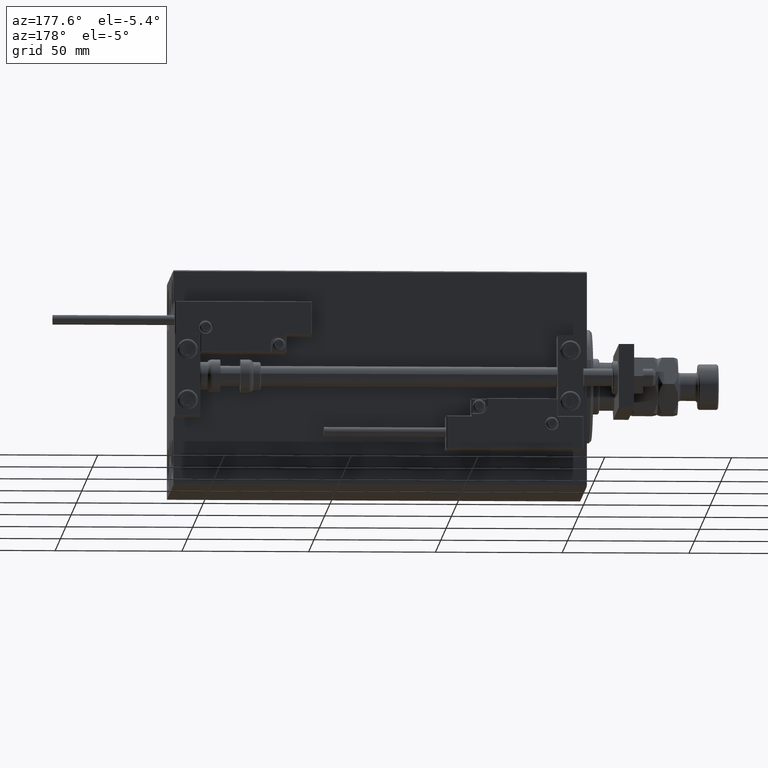
[diagram: clean part render]
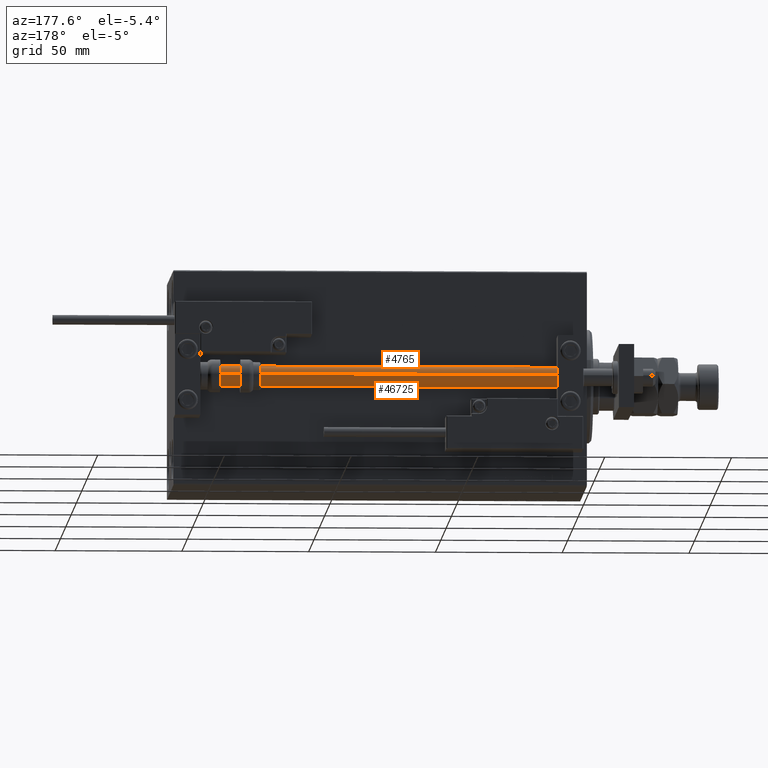
[diagram: same view with one multi-face feature highlighted, each face labeled with its STEP entity id]
A machine part, auxiliary view. The highlighted faces form ONE feature: a constant-radius fillet chain: 2 tangent blend faces with common blend radius 4 mm. The faces share edges in the B-rep.
Their STEP definitions:
[1] entity #46725 (Cylinder):
#442 = CIRCLE ( 'NONE', #32156, 4.000000000000000000 ) ;
#768 = CYLINDRICAL_SURFACE ( 'NONE', #41903, 4.000000000000000000 ) ;
#1303 = CARTESIAN_POINT ( 'NONE',  ( 0.000000000000000000, 0.000000000000000000, 163.0000000000000000 ) ) ;
#2083 = CARTESIAN_POINT ( 'NONE',  ( 4.000000000000000000, 4.898587196589412829E-16, 163.0000000000000000 ) ) ;
#4780 = VERTEX_POINT ( 'NONE', #24670 ) ;
#4895 = ORIENTED_EDGE ( 'NONE', *, *, #31875, .F. ) ;
#9328 = DIRECTION ( 'NONE',  ( -0.000000000000000000, -0.000000000000000000, -1.000000000000000000 ) ) ;
#10497 = CARTESIAN_POINT ( 'NONE',  ( 4.000000000000000000, 4.898587196589412829E-16, 163.0000000000000000 ) ) ;
#10746 = LINE ( 'NONE', #10497, #43607 ) ;
#10883 = CARTESIAN_POINT ( 'NONE',  ( 0.000000000000000000, 0.000000000000000000, 163.0000000000000000 ) ) ;
#12787 = DIRECTION ( 'NONE',  ( -0.000000000000000000, -0.000000000000000000, -1.000000000000000000 ) ) ;
#14852 = CARTESIAN_POINT ( 'NONE',  ( 4.000000000000000000, 4.898587196589412829E-16, 2.000000000000029310 ) ) ;
#17227 = FACE_OUTER_BOUND ( 'NONE', #26815, .T. ) ;
#18848 = DIRECTION ( 'NONE',  ( -0.000000000000000000, -0.000000000000000000, -1.000000000000000000 ) ) ;
#18976 = DIRECTION ( 'NONE',  ( 0.000000000000000000, 0.000000000000000000, 1.000000000000000000 ) ) ;
#21367 = LINE ( 'NONE', #29200, #28504 ) ;
#22553 = ORIENTED_EDGE ( 'NONE', *, *, #51360, .F. ) ;
#23692 = EDGE_CURVE ( 'NONE', #4780, #37095, #21367, .T. ) ;
#24670 = CARTESIAN_POINT ( 'NONE',  ( -4.000000000000000000, 0.000000000000000000, 163.0000000000000000 ) ) ;
#25251 = EDGE_CURVE ( 'NONE', #37095, #29797, #31082, .T. ) ;
#26815 = EDGE_LOOP ( 'NONE', ( #22553, #4895, #34334, #43322 ) ) ;
#28504 = VECTOR ( 'NONE', #9328, 1000.000000000000000 ) ;
#29200 = CARTESIAN_POINT ( 'NONE',  ( -4.000000000000000000, 0.000000000000000000, 163.0000000000000000 ) ) ;
#29797 = VERTEX_POINT ( 'NONE', #14852 ) ;
#31082 = CIRCLE ( 'NONE', #45281, 4.000000000000000000 ) ;
#31875 = EDGE_CURVE ( 'NONE', #4780, #36348, #442, .T. ) ;
#32156 = AXIS2_PLACEMENT_3D ( 'NONE', #10883, #18976, #34957 ) ;
#34334 = ORIENTED_EDGE ( 'NONE', *, *, #23692, .T. ) ;
#34957 = DIRECTION ( 'NONE',  ( 1.000000000000000000, 0.000000000000000000, 0.000000000000000000 ) ) ;
#35281 = CARTESIAN_POINT ( 'NONE',  ( 0.000000000000000000, 0.000000000000000000, 2.000000000000029310 ) ) ;
#35838 = CARTESIAN_POINT ( 'NONE',  ( -4.000000000000000000, 0.000000000000000000, 2.000000000000029310 ) ) ;
#36348 = VERTEX_POINT ( 'NONE', #2083 ) ;
#37095 = VERTEX_POINT ( 'NONE', #35838 ) ;
#41903 = AXIS2_PLACEMENT_3D ( 'NONE', #1303, #12787, #49158 ) ;
#43322 = ORIENTED_EDGE ( 'NONE', *, *, #25251, .T. ) ;
#43607 = VECTOR ( 'NONE', #18848, 1000.000000000000000 ) ;
#45281 = AXIS2_PLACEMENT_3D ( 'NONE', #35281, #51771, #51254 ) ;
#46725 = ADVANCED_FACE ( 'NONE', ( #17227 ), #768, .T. ) ;
#49158 = DIRECTION ( 'NONE',  ( -1.000000000000000000, 0.000000000000000000, 0.000000000000000000 ) ) ;
#51254 = DIRECTION ( 'NONE',  ( 1.000000000000000000, 0.000000000000000000, 0.000000000000000000 ) ) ;
#51360 = EDGE_CURVE ( 'NONE', #36348, #29797, #10746, .T. ) ;
#51771 = DIRECTION ( 'NONE',  ( -0.000000000000000000, -0.000000000000000000, 1.000000000000000000 ) ) ;
[2] entity #4765 (Cylinder):
#2083 = CARTESIAN_POINT ( 'NONE',  ( 4.000000000000000000, 4.898587196589412829E-16, 163.0000000000000000 ) ) ;
#3597 = ORIENTED_EDGE ( 'NONE', *, *, #51360, .T. ) ;
#4765 = ADVANCED_FACE ( 'NONE', ( #7927 ), #23880, .T. ) ;
#4780 = VERTEX_POINT ( 'NONE', #24670 ) ;
#5652 = CIRCLE ( 'NONE', #14804, 4.000000000000000000 ) ;
#6347 = ORIENTED_EDGE ( 'NONE', *, *, #10905, .T. ) ;
#7927 = FACE_OUTER_BOUND ( 'NONE', #38017, .T. ) ;
#8215 = CARTESIAN_POINT ( 'NONE',  ( 0.000000000000000000, 0.000000000000000000, 163.0000000000000000 ) ) ;
#8710 = DIRECTION ( 'NONE',  ( -0.000000000000000000, -0.000000000000000000, -1.000000000000000000 ) ) ;
#9193 = CARTESIAN_POINT ( 'NONE',  ( 0.000000000000000000, 0.000000000000000000, 2.000000000000029310 ) ) ;
#9328 = DIRECTION ( 'NONE',  ( -0.000000000000000000, -0.000000000000000000, -1.000000000000000000 ) ) ;
#10497 = CARTESIAN_POINT ( 'NONE',  ( 4.000000000000000000, 4.898587196589412829E-16, 163.0000000000000000 ) ) ;
#10746 = LINE ( 'NONE', #10497, #43607 ) ;
#10905 = EDGE_CURVE ( 'NONE', #29797, #37095, #5652, .T. ) ;
#13112 = EDGE_CURVE ( 'NONE', #36348, #4780, #24937, .T. ) ;
#14804 = AXIS2_PLACEMENT_3D ( 'NONE', #9193, #29332, #26187 ) ;
#14852 = CARTESIAN_POINT ( 'NONE',  ( 4.000000000000000000, 4.898587196589412829E-16, 2.000000000000029310 ) ) ;
#16126 = AXIS2_PLACEMENT_3D ( 'NONE', #19429, #8710, #36175 ) ;
#18848 = DIRECTION ( 'NONE',  ( -0.000000000000000000, -0.000000000000000000, -1.000000000000000000 ) ) ;
#19042 = AXIS2_PLACEMENT_3D ( 'NONE', #8215, #32017, #23908 ) ;
#19429 = CARTESIAN_POINT ( 'NONE',  ( 0.000000000000000000, 0.000000000000000000, 163.0000000000000000 ) ) ;
#21367 = LINE ( 'NONE', #29200, #28504 ) ;
#23692 = EDGE_CURVE ( 'NONE', #4780, #37095, #21367, .T. ) ;
#23880 = CYLINDRICAL_SURFACE ( 'NONE', #16126, 4.000000000000000000 ) ;
#23908 = DIRECTION ( 'NONE',  ( 1.000000000000000000, 0.000000000000000000, 0.000000000000000000 ) ) ;
#24670 = CARTESIAN_POINT ( 'NONE',  ( -4.000000000000000000, 0.000000000000000000, 163.0000000000000000 ) ) ;
#24937 = CIRCLE ( 'NONE', #19042, 4.000000000000000000 ) ;
#26187 = DIRECTION ( 'NONE',  ( 1.000000000000000000, 0.000000000000000000, 0.000000000000000000 ) ) ;
#28504 = VECTOR ( 'NONE', #9328, 1000.000000000000000 ) ;
#29200 = CARTESIAN_POINT ( 'NONE',  ( -4.000000000000000000, 0.000000000000000000, 163.0000000000000000 ) ) ;
#29332 = DIRECTION ( 'NONE',  ( -0.000000000000000000, -0.000000000000000000, 1.000000000000000000 ) ) ;
#29797 = VERTEX_POINT ( 'NONE', #14852 ) ;
#32017 = DIRECTION ( 'NONE',  ( 0.000000000000000000, 0.000000000000000000, 1.000000000000000000 ) ) ;
#35838 = CARTESIAN_POINT ( 'NONE',  ( -4.000000000000000000, 0.000000000000000000, 2.000000000000029310 ) ) ;
#36175 = DIRECTION ( 'NONE',  ( -1.000000000000000000, 0.000000000000000000, 0.000000000000000000 ) ) ;
#36348 = VERTEX_POINT ( 'NONE', #2083 ) ;
#37095 = VERTEX_POINT ( 'NONE', #35838 ) ;
#38017 = EDGE_LOOP ( 'NONE', ( #42183, #3597, #6347, #38764 ) ) ;
#38764 = ORIENTED_EDGE ( 'NONE', *, *, #23692, .F. ) ;
#42183 = ORIENTED_EDGE ( 'NONE', *, *, #13112, .F. ) ;
#43607 = VECTOR ( 'NONE', #18848, 1000.000000000000000 ) ;
#51360 = EDGE_CURVE ( 'NONE', #36348, #29797, #10746, .T. ) ;